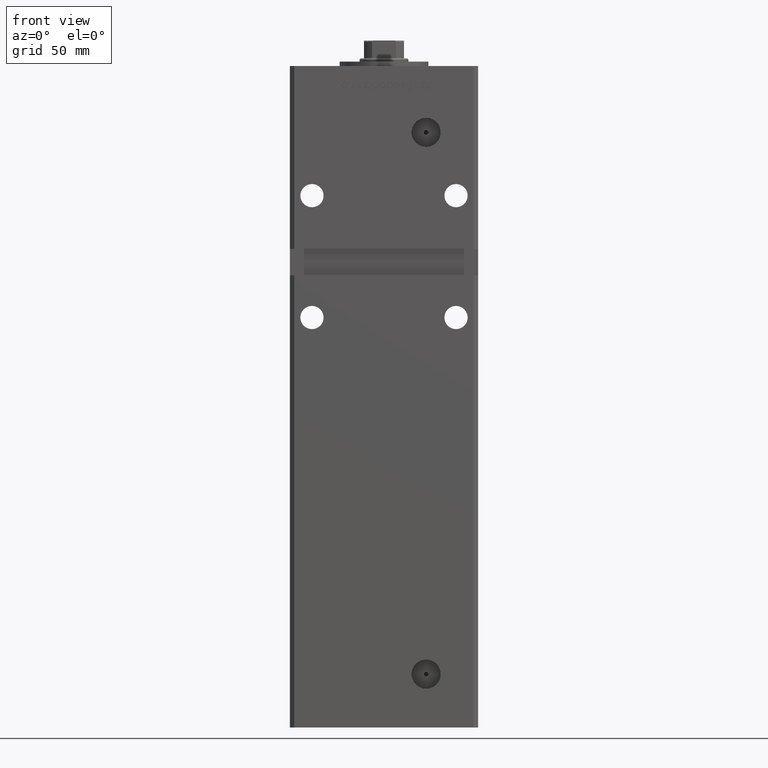
[diagram: clean part render]
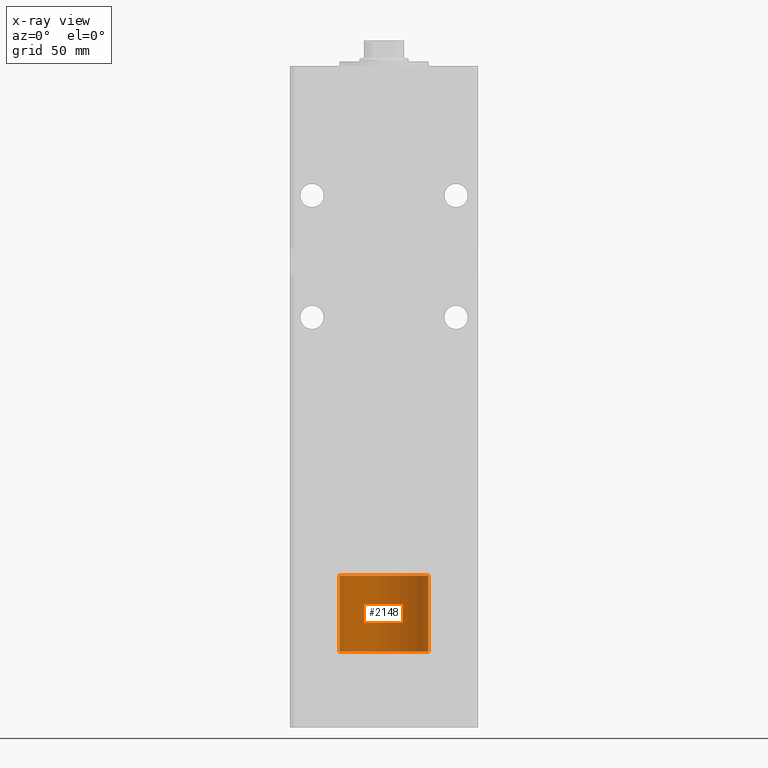
[diagram: x-ray — body ghosted, one internal face saturated and labeled with its STEP entity id]
A machine part, front view, then the same camera in x-ray: the body is ghosted and one INTERNAL B-rep face — a face not visible from any outside direction — is saturated and labeled: STEP entity #2148.
In plain terms, the highlighted cylindrical surface (partial cylindrical patch) has radius 20 mm, axis along (-0, -0, -1).
Its self-contained STEP definition (entity closure, byte-faithful):
#92 = AXIS2_PLACEMENT_3D ( 'NONE', #40153, #19687, #15678 ) ;
#1722 = ORIENTED_EDGE ( 'NONE', *, *, #28904, .F. ) ;
#1750 = CIRCLE ( 'NONE', #10343, 20.00000000000000000 ) ;
#2148 = ADVANCED_FACE ( 'NONE', ( #7351 ), #23733, .T. ) ;
#2371 = LINE ( 'NONE', #51866, #32329 ) ;
#6746 = DIRECTION ( 'NONE',  ( 0.000000000000000000, 0.000000000000000000, 1.000000000000000000 ) ) ;
#7351 = FACE_OUTER_BOUND ( 'NONE', #34854, .T. ) ;
#9658 = CARTESIAN_POINT ( 'NONE',  ( -20.00000000000000000, 0.000000000000000000, 34.25000000000000000 ) ) ;
#10343 = AXIS2_PLACEMENT_3D ( 'NONE', #43710, #14383, #27548 ) ;
#10547 = EDGE_CURVE ( 'NONE', #51901, #41500, #2371, .T. ) ;
#14383 = DIRECTION ( 'NONE',  ( 0.000000000000000000, 0.000000000000000000, 1.000000000000000000 ) ) ;
#15066 = VERTEX_POINT ( 'NONE', #35455 ) ;
#15535 = VECTOR ( 'NONE', #21745, 1000.000000000000000 ) ;
#15678 = DIRECTION ( 'NONE',  ( -1.000000000000000000, 0.000000000000000000, 0.000000000000000000 ) ) ;
#16919 = ORIENTED_EDGE ( 'NONE', *, *, #27827, .T. ) ;
#17968 = LINE ( 'NONE', #9658, #15535 ) ;
#18679 = ORIENTED_EDGE ( 'NONE', *, *, #10547, .T. ) ;
#19368 = DIRECTION ( 'NONE',  ( 1.000000000000000000, 0.000000000000000000, 0.000000000000000000 ) ) ;
#19564 = VERTEX_POINT ( 'NONE', #23900 ) ;
#19687 = DIRECTION ( 'NONE',  ( -0.000000000000000000, -0.000000000000000000, -1.000000000000000000 ) ) ;
#21745 = DIRECTION ( 'NONE',  ( -0.000000000000000000, -0.000000000000000000, -1.000000000000000000 ) ) ;
#22277 = ORIENTED_EDGE ( 'NONE', *, *, #31296, .F. ) ;
#23733 = CYLINDRICAL_SURFACE ( 'NONE', #92, 20.00000000000000000 ) ;
#23900 = CARTESIAN_POINT ( 'NONE',  ( -20.00000000000000000, 0.000000000000000000, 0.000000000000000000 ) ) ;
#27178 = CARTESIAN_POINT ( 'NONE',  ( 0.000000000000000000, 0.000000000000000000, 0.000000000000000000 ) ) ;
#27548 = DIRECTION ( 'NONE',  ( 1.000000000000000000, 0.000000000000000000, 0.000000000000000000 ) ) ;
#27827 = EDGE_CURVE ( 'NONE', #41500, #19564, #37756, .T. ) ;
#28904 = EDGE_CURVE ( 'NONE', #15066, #19564, #17968, .T. ) ;
#31296 = EDGE_CURVE ( 'NONE', #51901, #15066, #1750, .T. ) ;
#32329 = VECTOR ( 'NONE', #48358, 1000.000000000000000 ) ;
#34854 = EDGE_LOOP ( 'NONE', ( #22277, #18679, #16919, #1722 ) ) ;
#35455 = CARTESIAN_POINT ( 'NONE',  ( -20.00000000000000000, 0.000000000000000000, 34.25000000000000000 ) ) ;
#37756 = CIRCLE ( 'NONE', #48067, 20.00000000000000000 ) ;
#39925 = CARTESIAN_POINT ( 'NONE',  ( 20.00000000000000000, 2.449293598294706513E-15, 34.25000000000000000 ) ) ;
#40153 = CARTESIAN_POINT ( 'NONE',  ( 0.000000000000000000, 0.000000000000000000, 34.25000000000000000 ) ) ;
#41500 = VERTEX_POINT ( 'NONE', #45315 ) ;
#43710 = CARTESIAN_POINT ( 'NONE',  ( 0.000000000000000000, 0.000000000000000000, 34.25000000000000000 ) ) ;
#45315 = CARTESIAN_POINT ( 'NONE',  ( 20.00000000000000000, 2.449293598294706513E-15, 0.000000000000000000 ) ) ;
#48067 = AXIS2_PLACEMENT_3D ( 'NONE', #27178, #6746, #19368 ) ;
#48358 = DIRECTION ( 'NONE',  ( -0.000000000000000000, -0.000000000000000000, -1.000000000000000000 ) ) ;
#51866 = CARTESIAN_POINT ( 'NONE',  ( 20.00000000000000000, 2.449293598294706513E-15, 34.25000000000000000 ) ) ;
#51901 = VERTEX_POINT ( 'NONE', #39925 ) ;